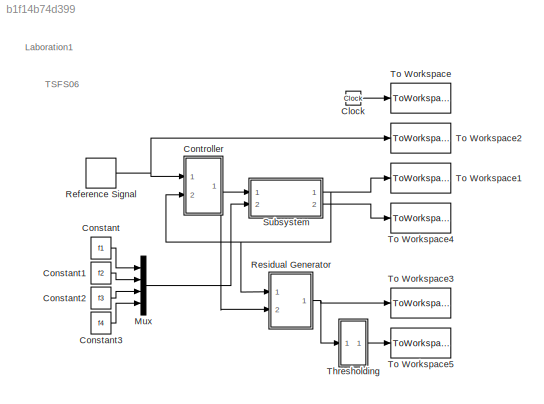
MODEL slx_b1f14b74d399
KIND model
CONFIG AbsTol = auto
CONFIG FixedStep = auto
CONFIG MaxStep = auto
CONFIG MinStep = auto
CONFIG RelTol = 1e-3
CONFIG SampleTimeConstraint = Unconstrained
CONFIG Solver = ode45
CONFIG SolverMode = Auto
CONFIG SolverName = ode45
CONFIG StartTime = 0.0
CONFIG StopTime = 50.0
BLOCK [Clock] Clock
BLOCK [Constant] Constant
  Value = f1
BLOCK [Constant] Constant1
  Value = f2
BLOCK [Constant] Constant2
  Value = f3
BLOCK [Constant] Constant3
  Value = f4
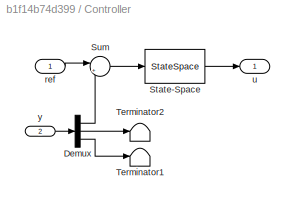
BLOCK [SubSystem] Controller
  Ports = [2, 1]
  RequestExecContextInheritance = off
  Variant = off
BLOCK [Demux] Controller/Demux
  Outputs = 3
  Ports = [1, 3]
BLOCK [StateSpace] Controller/State-Space
  A = Fc.a
  B = Fc.b
  C = Fc.c
  D = Fc.d
  Ports = [1, 1]
  X0 = 0
BLOCK [Sum] Controller/Sum
  IconShape = round
  Inputs = |+-
  Ports = [2, 1]
BLOCK [Terminator] Controller/Terminator1
BLOCK [Terminator] Controller/Terminator2
BLOCK [Inport] Controller/ref
  IconDisplay = Port number
BLOCK [Outport] Controller/u
  IconDisplay = Port number
BLOCK [Inport] Controller/y
  IconDisplay = Port number
  Port = 2
BLOCK [Mux] Mux
  DisplayOption = bar
  Ports = [4, 1]
BLOCK [DiscretePulseGenerator] Reference Signal
  Period = 20
  PhaseDelay = 1
  Ports = [0, 1]
  PulseWidth = 10
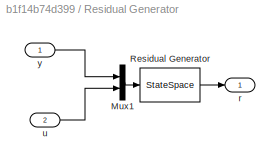
BLOCK [SubSystem] Residual Generator
  Ports = [2, 1]
  RequestExecContextInheritance = off
  Variant = off
BLOCK [Mux] Residual Generator/Mux1
  DisplayOption = bar
  Inputs = 2
  Ports = [2, 1]
BLOCK [StateSpace] Residual Generator/Residual Generator
  A = R.a
  B = R.b
  C = R.c
  D = R.d
  Ports = [1, 1]
  X0 = 0
BLOCK [Outport] Residual Generator/r
  IconDisplay = Port number
BLOCK [Inport] Residual Generator/u
  IconDisplay = Port number
  Port = 2
BLOCK [Inport] Residual Generator/y
  IconDisplay = Port number
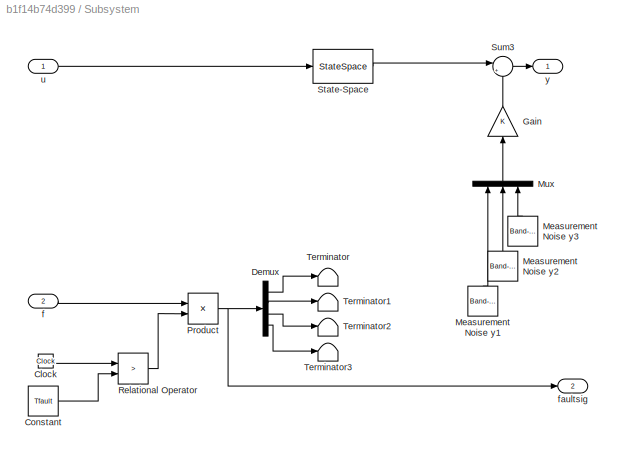
BLOCK [SubSystem] Subsystem
  Ports = [2, 2]
  RequestExecContextInheritance = off
  Variant = off
BLOCK [Clock] Subsystem/Clock
BLOCK [Constant] Subsystem/Constant
  Value = Tfault
BLOCK [Demux] Subsystem/Demux
  Ports = [1, 4]
BLOCK [Gain] Subsystem/Gain
BLOCK [Reference] Subsystem/Measurement Noise y1  REF=simulink/Sources/Band-Limited
White Noise
  Ports = [0, 1]
  SourceBlock = simulink/Sources/Band-Limited\nWhite Noise
  SourceType = Band-Limited White Noise.
BLOCK [Reference] Subsystem/Measurement Noise y2  REF=simulink/Sources/Band-Limited
White Noise
  Ports = [0, 1]
  SourceBlock = simulink/Sources/Band-Limited\nWhite Noise
  SourceType = Band-Limited White Noise.
BLOCK [Reference] Subsystem/Measurement Noise y3  REF=simulink/Sources/Band-Limited
White Noise
  Ports = [0, 1]
  SourceBlock = simulink/Sources/Band-Limited\nWhite Noise
  SourceType = Band-Limited White Noise.
BLOCK [Mux] Subsystem/Mux
  DisplayOption = bar
  Inputs = 3
  Ports = [3, 1]
BLOCK [Product] Subsystem/Product
  Ports = [2, 1]
BLOCK [RelationalOperator] Subsystem/Relational Operator
  Operator = >
  Ports = [2, 1]
BLOCK [StateSpace] Subsystem/State-Space
  A = [0 1 0 0;-alpha2/J1 -(alpha1+alpha3)/J1 alpha2/J1 alpha3/J1;0 0 0 1;alpha2/J2 alpha3/J2 -alpha2/J2 -(alpha3+alpha4)/J2]
  B = [0;k/J1;0;0]
  C = [eye(3) zeros(3,1)]
  D = zeros(3,1)
  Ports = [1, 1]
  X0 = zeros(4,1)
BLOCK [Sum] Subsystem/Sum3
  IconShape = round
  Inputs = |++
  Ports = [2, 1]
BLOCK [Terminator] Subsystem/Terminator
BLOCK [Terminator] Subsystem/Terminator1
BLOCK [Terminator] Subsystem/Terminator2
BLOCK [Terminator] Subsystem/Terminator3
BLOCK [Inport] Subsystem/f
  IconDisplay = Port number
  Port = 2
BLOCK [Outport] Subsystem/faultsig
  IconDisplay = Port number
  Port = 2
BLOCK [Inport] Subsystem/u
  IconDisplay = Port number
BLOCK [Outport] Subsystem/y
  IconDisplay = Port number
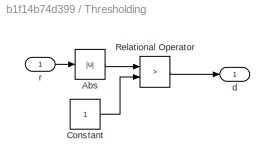
BLOCK [SubSystem] Thresholding
  Ports = [1, 1]
  RequestExecContextInheritance = off
  Variant = off
BLOCK [Abs] Thresholding/Abs
BLOCK [Constant] Thresholding/Constant
BLOCK [RelationalOperator] Thresholding/Relational Operator
  Operator = >
  Ports = [2, 1]
BLOCK [Outport] Thresholding/d
  IconDisplay = Port number
BLOCK [Inport] Thresholding/r
  IconDisplay = Port number
BLOCK [ToWorkspace] To Workspace
  MaxDataPoints = inf
  Ports = [1]
  SampleTime = 0.1
  VariableName = t
BLOCK [ToWorkspace] To Workspace1
  MaxDataPoints = inf
  Ports = [1]
  SampleTime = 0.1
  VariableName = y
BLOCK [ToWorkspace] To Workspace2
  MaxDataPoints = inf
  Ports = [1]
  SampleTime = 0.1
  VariableName = ref
BLOCK [ToWorkspace] To Workspace3
  MaxDataPoints = inf
  Ports = [1]
  SampleTime = 0.1
  VariableName = res
BLOCK [ToWorkspace] To Workspace4
  MaxDataPoints = inf
  Ports = [1]
  SampleTime = 0.1
  VariableName = f
BLOCK [ToWorkspace] To Workspace5
  MaxDataPoints = inf
  Ports = [1]
  SampleTime = 0.1
  VariableName = T
ANNOTATION (root): Laboration1
ANNOTATION (root): TSFS06
LINE Clock:1 -> To Workspace:1
LINE Constant1:1 -> Mux:2
LINE Constant2:1 -> Mux:3
LINE Constant3:1 -> Mux:4
LINE Constant:1 -> Mux:1
LINE Controller/Demux:1 -> Controller/Sum:2
LINE Controller/Demux:2 -> Controller/Terminator2:1
LINE Controller/Demux:3 -> Controller/Terminator1:1
LINE Controller/State-Space:1 -> Controller/u:1
LINE Controller/Sum:1 -> Controller/State-Space:1
LINE Controller/ref:1 -> Controller/Sum:1
LINE Controller/y:1 -> Controller/Demux:1
NET Controller:1 -> Residual Generator:2, Subsystem:1
LINE Mux:1 -> Subsystem:2
NET Reference Signal:1 -> Controller:1, To Workspace2:1
LINE Residual Generator/Mux1:1 -> Residual Generator/Residual Generator:1
LINE Residual Generator/Residual Generator:1 -> Residual Generator/r:1
LINE Residual Generator/u:1 -> Residual Generator/Mux1:2
LINE Residual Generator/y:1 -> Residual Generator/Mux1:1
NET Residual Generator:1 -> Thresholding:1, To Workspace3:1
LINE Subsystem/Clock:1 -> Subsystem/Relational Operator:1
LINE Subsystem/Constant:1 -> Subsystem/Relational Operator:2
LINE Subsystem/Demux:1 -> Subsystem/Terminator:1
LINE Subsystem/Demux:2 -> Subsystem/Terminator1:1
LINE Subsystem/Demux:3 -> Subsystem/Terminator2:1
LINE Subsystem/Demux:4 -> Subsystem/Terminator3:1
LINE Subsystem/Gain:1 -> Subsystem/Sum3:2
LINE Subsystem/Measurement Noise y1:1 -> Subsystem/Mux:1
LINE Subsystem/Measurement Noise y2:1 -> Subsystem/Mux:2
LINE Subsystem/Measurement Noise y3:1 -> Subsystem/Mux:3
LINE Subsystem/Mux:1 -> Subsystem/Gain:1
NET Subsystem/Product:1 -> Subsystem/Demux:1, Subsystem/faultsig:1
LINE Subsystem/Relational Operator:1 -> Subsystem/Product:2
LINE Subsystem/State-Space:1 -> Subsystem/Sum3:1
LINE Subsystem/Sum3:1 -> Subsystem/y:1
LINE Subsystem/f:1 -> Subsystem/Product:1
LINE Subsystem/u:1 -> Subsystem/State-Space:1
NET Subsystem:1 -> Controller:2, Residual Generator:1, To Workspace1:1
LINE Subsystem:2 -> To Workspace4:1
LINE Thresholding/Abs:1 -> Thresholding/Relational Operator:1
LINE Thresholding/Constant:1 -> Thresholding/Relational Operator:2
LINE Thresholding/Relational Operator:1 -> Thresholding/d:1
LINE Thresholding/r:1 -> Thresholding/Abs:1
LINE Thresholding:1 -> To Workspace5:1
note: NET lines group one-source signal fan-out (src -> all destinations, sorted); 1:1 wires keep LINE
